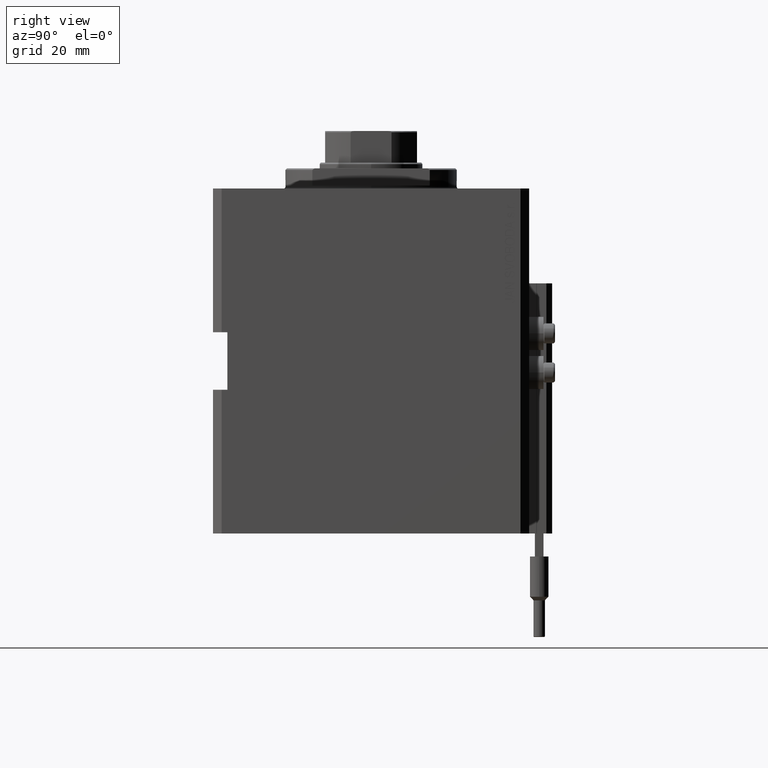
[diagram: clean part render]
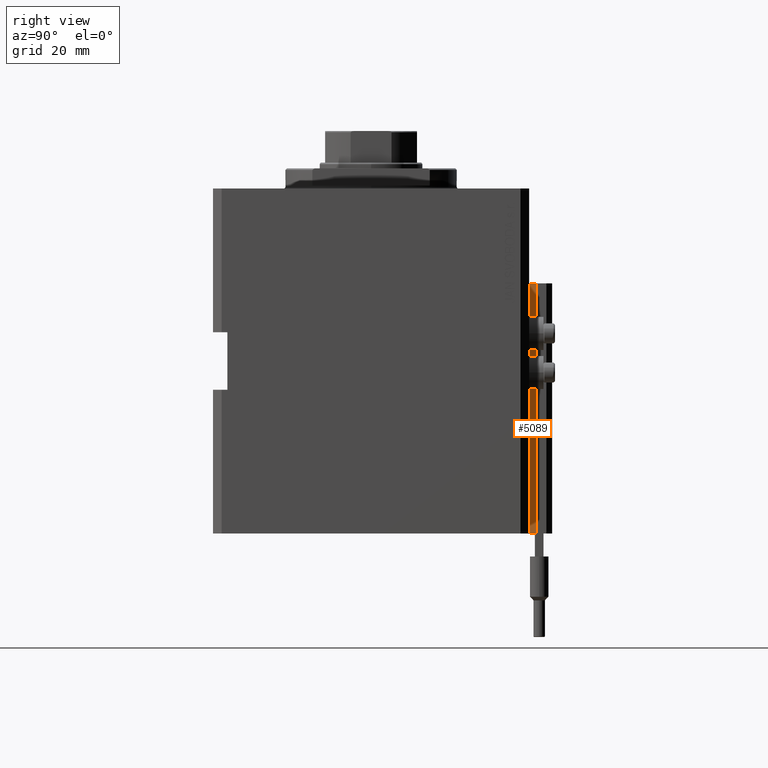
[diagram: same view with one face highlighted and labeled with its STEP entity id]
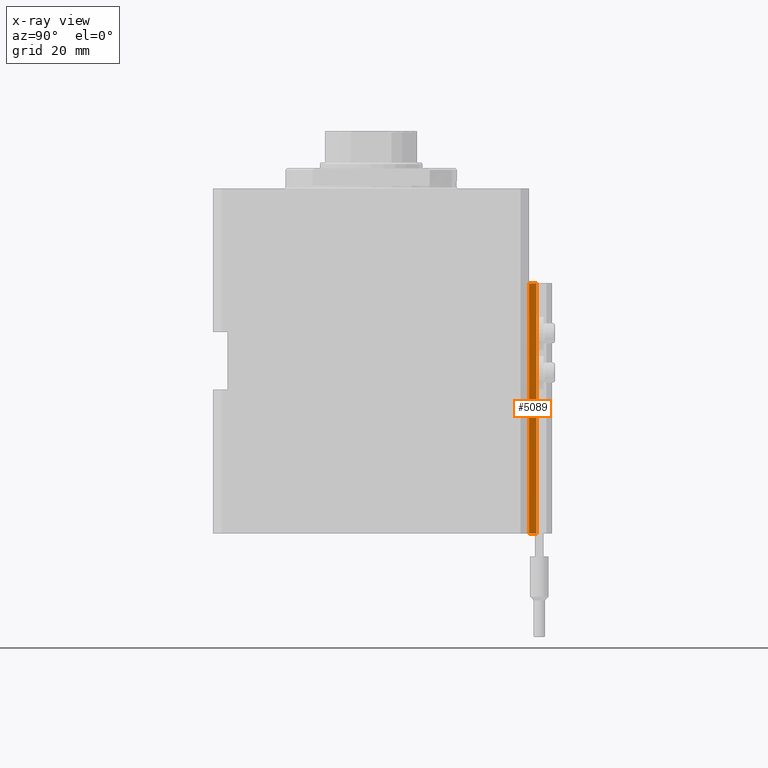
[diagram: x-ray of the same camera — body ghosted, the highlighted face saturated]
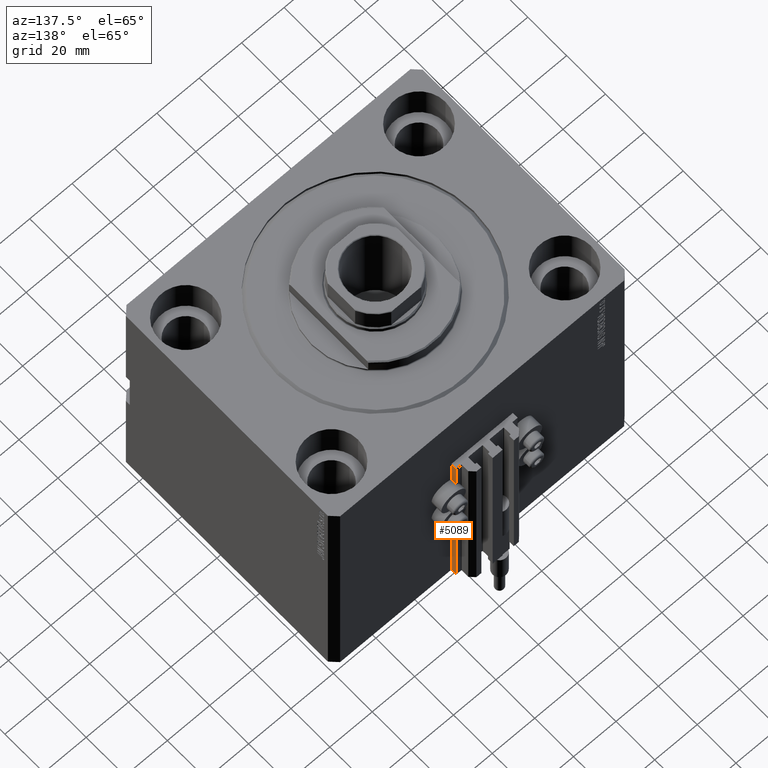
[diagram: same view with one face highlighted and labeled with its STEP entity id]
A machine part, right view. The second image highlights one B-rep face of the part: STEP entity #5089.
The next image is the same camera in x-ray: the body ghosted, the highlighted face saturated — about 0% of this face is hidden behind the body in this view.
A second angle (auxiliary view) of the same face is appended — the face is thin or edge-on in the first view.
In plain terms, the highlighted planar face has unit normal (1, 0, 0).
Its self-contained STEP definition (entity closure, byte-faithful):
#614 = EDGE_CURVE ( 'NONE', #28581, #8336, #32368, .T. ) ;
#1168 = EDGE_LOOP ( 'NONE', ( #1884, #46821, #22443, #13448 ) ) ;
#1884 = ORIENTED_EDGE ( 'NONE', *, *, #40734, .F. ) ;
#4400 = LINE ( 'NONE', #38974, #36931 ) ;
#5089 = ADVANCED_FACE ( 'NONE', ( #45561 ), #41042, .T. ) ;
#5858 = DIRECTION ( 'NONE',  ( 0.000000000000000000, 1.000000000000000000, 0.000000000000000000 ) ) ;
#7505 = EDGE_CURVE ( 'NONE', #31676, #29860, #4400, .T. ) ;
#8336 = VERTEX_POINT ( 'NONE', #9871 ) ;
#9606 = LINE ( 'NONE', #17626, #11755 ) ;
#9871 = CARTESIAN_POINT ( 'NONE',  ( 14.49999999999999645, 57.50000000000002132, -33.00000000000000000 ) ) ;
#11755 = VECTOR ( 'NONE', #5858, 1000.000000000000000 ) ;
#12380 = VECTOR ( 'NONE', #46533, 1000.000000000000000 ) ;
#13448 = ORIENTED_EDGE ( 'NONE', *, *, #614, .T. ) ;
#15218 = LINE ( 'NONE', #46300, #12380 ) ;
#17626 = CARTESIAN_POINT ( 'NONE',  ( 14.49999999999999645, 55.00000000000000711, -120.0000000000000000 ) ) ;
#20731 = CARTESIAN_POINT ( 'NONE',  ( 14.49999999999999645, 57.50000000000002132, -120.0000000000000000 ) ) ;
#22443 = ORIENTED_EDGE ( 'NONE', *, *, #49135, .T. ) ;
#22482 = DIRECTION ( 'NONE',  ( 0.000000000000000000, 0.000000000000000000, -1.000000000000000000 ) ) ;
#24838 = DIRECTION ( 'NONE',  ( 0.000000000000000000, 0.000000000000000000, 1.000000000000000000 ) ) ;
#25345 = VECTOR ( 'NONE', #24838, 1000.000000000000000 ) ;
#28116 = CARTESIAN_POINT ( 'NONE',  ( 14.49999999999999645, 57.50000000000002132, -120.0000000000000000 ) ) ;
#28581 = VERTEX_POINT ( 'NONE', #20731 ) ;
#29569 = CARTESIAN_POINT ( 'NONE',  ( 14.49999999999999645, 55.00000000000000711, -120.0000000000000000 ) ) ;
#29860 = VERTEX_POINT ( 'NONE', #45269 ) ;
#30261 = CARTESIAN_POINT ( 'NONE',  ( 14.49999999999999645, 55.00000000000000711, -120.0000000000000000 ) ) ;
#31676 = VERTEX_POINT ( 'NONE', #29569 ) ;
#32368 = LINE ( 'NONE', #28116, #25345 ) ;
#36859 = AXIS2_PLACEMENT_3D ( 'NONE', #30261, #48827, #22482 ) ;
#36931 = VECTOR ( 'NONE', #47472, 1000.000000000000000 ) ;
#38974 = CARTESIAN_POINT ( 'NONE',  ( 14.49999999999999645, 55.00000000000000711, -120.0000000000000000 ) ) ;
#40734 = EDGE_CURVE ( 'NONE', #29860, #8336, #15218, .T. ) ;
#41042 = PLANE ( 'NONE',  #36859 ) ;
#45269 = CARTESIAN_POINT ( 'NONE',  ( 14.49999999999999645, 55.00000000000000711, -33.00000000000000000 ) ) ;
#45561 = FACE_OUTER_BOUND ( 'NONE', #1168, .T. ) ;
#46300 = CARTESIAN_POINT ( 'NONE',  ( 14.49999999999999645, 55.00000000000000711, -33.00000000000000000 ) ) ;
#46533 = DIRECTION ( 'NONE',  ( 0.000000000000000000, 1.000000000000000000, 0.000000000000000000 ) ) ;
#46821 = ORIENTED_EDGE ( 'NONE', *, *, #7505, .F. ) ;
#47472 = DIRECTION ( 'NONE',  ( 0.000000000000000000, 0.000000000000000000, 1.000000000000000000 ) ) ;
#48827 = DIRECTION ( 'NONE',  ( 1.000000000000000000, 0.000000000000000000, 0.000000000000000000 ) ) ;
#49135 = EDGE_CURVE ( 'NONE', #31676, #28581, #9606, .T. ) ;